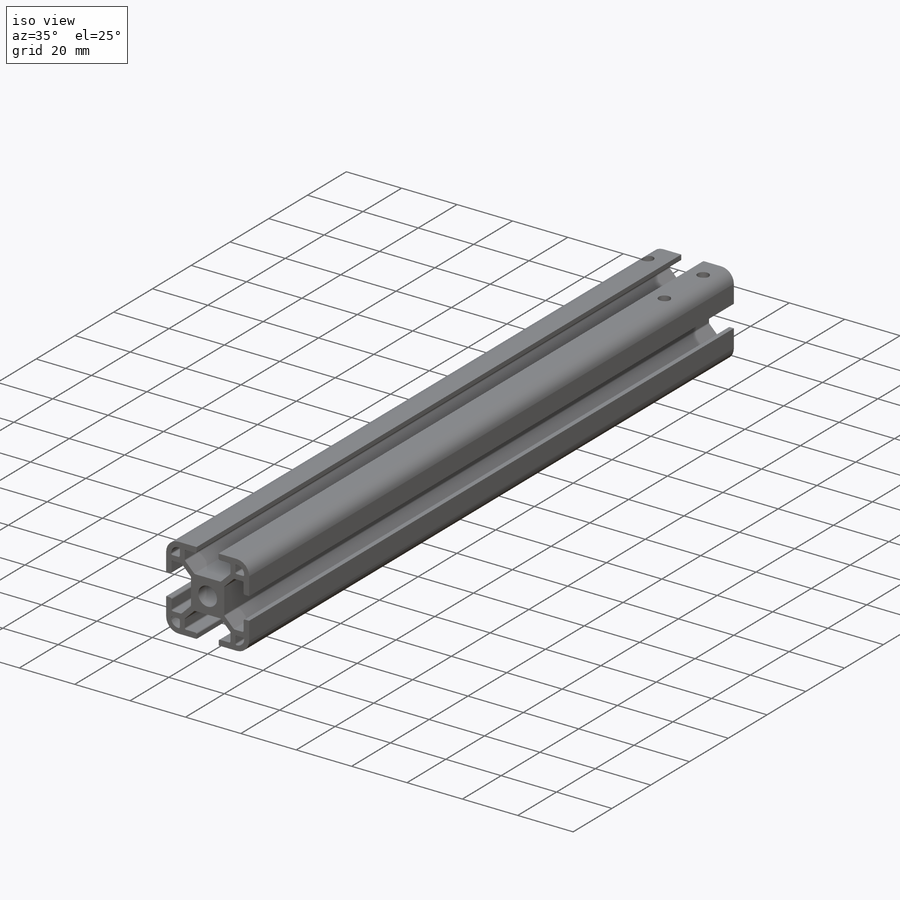
[diagram: iso view]
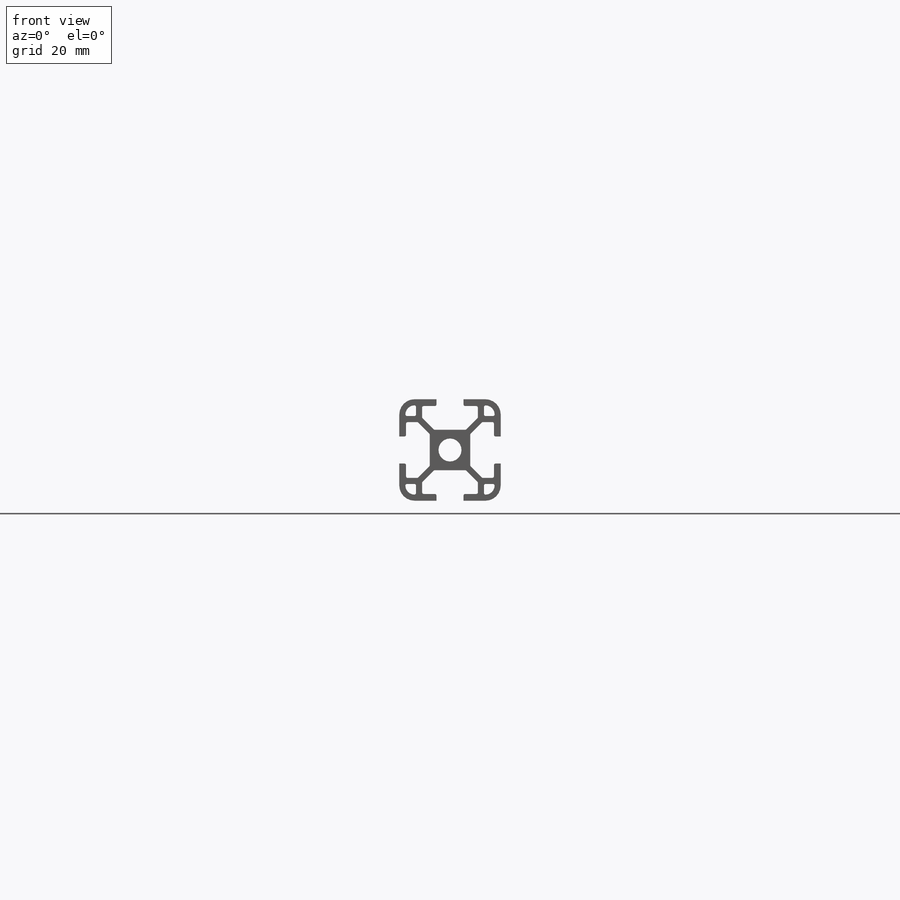
[diagram: front view]
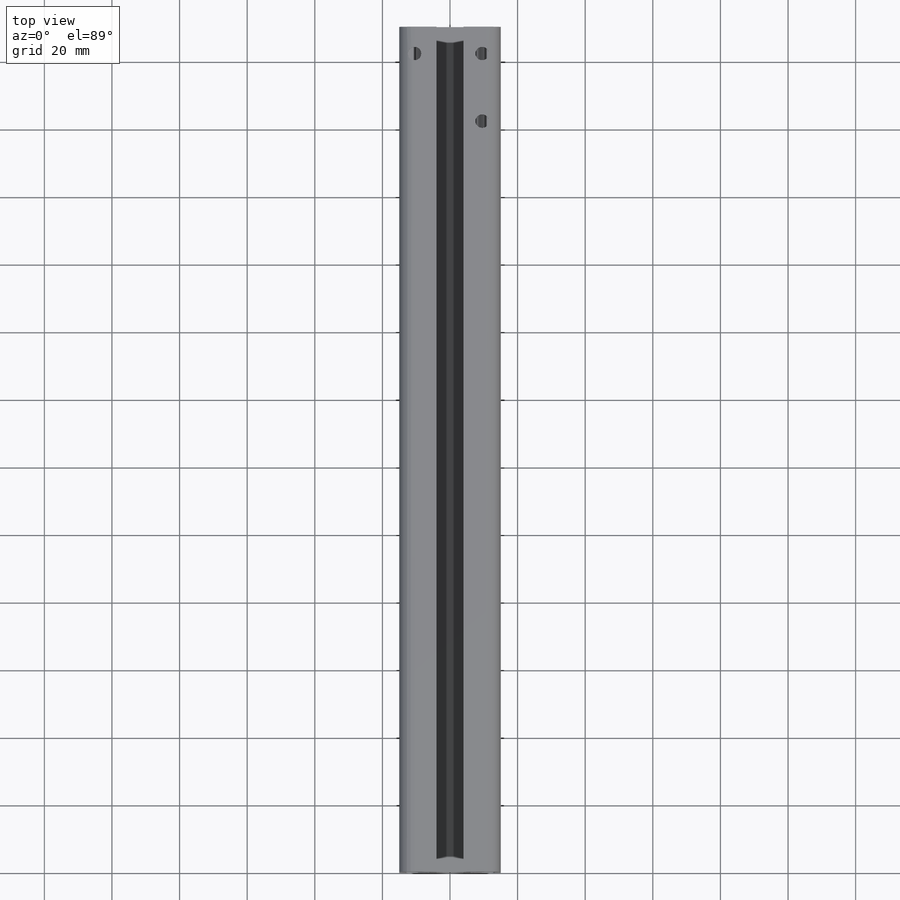
[diagram: top view]
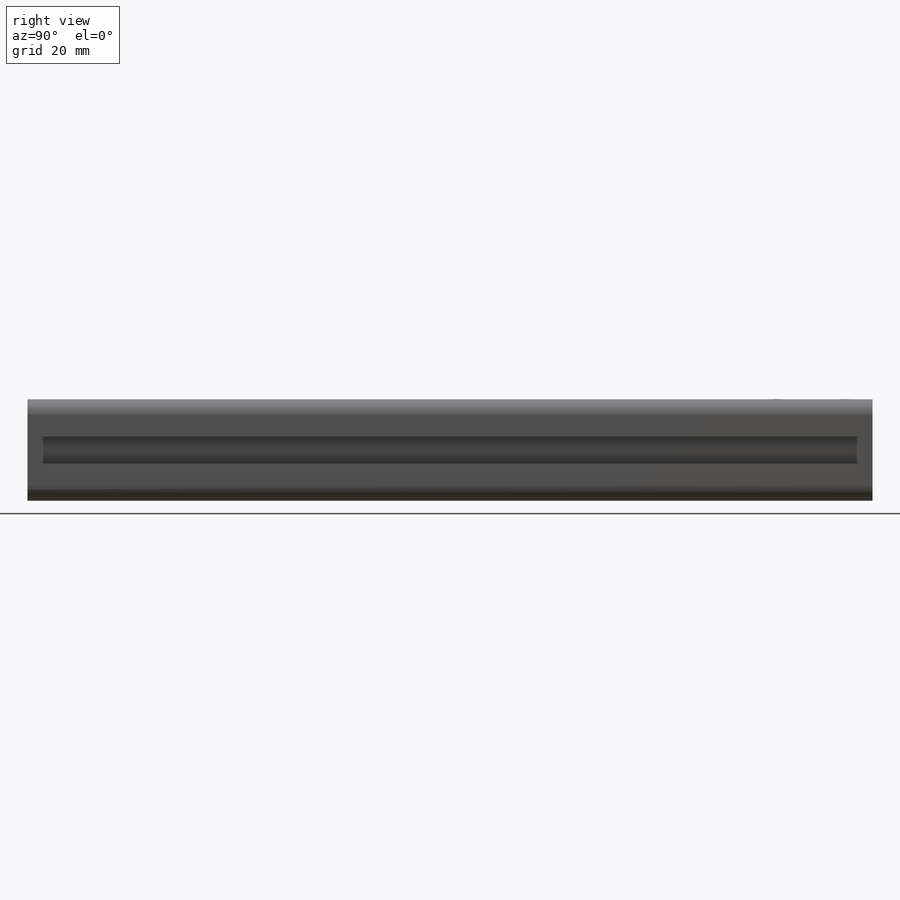
[diagram: right view]
SOLIDWORKS PART (.sldprt)
format: sldprt  version: not decoded by parser v0  size: 2,117,632 bytes
history: native  units: mm
features: sketch x11, plane x3, extrude x3, fillet x3, hole x3, shell x3, cut_extrude x2, material x1, thread x1 + 1 further entry (+11 scaffold rows collapsed)
feature tree (42):
  scaffold x11  (default folders/planes/origin — collapsed)
  material  "材質 <未指定>"
  plane  "前基準面"
  plane  "上基準面"
  plane  "右基準面"
  "設計表格"
  sketch  "草圖1"  dims[c1.D2=4.5mm c1.D3=6.8mm c1.MD1=30.0mm c2.D3=14.0mm c2.D4=12.0mm c3.D3=12.0mm c3.D6=8.2mm c3.D5=1.8mm]
  extrude  "填料-伸長1"  Depth=250mm MD1=250mm
  sketch  "草圖2"  dims[c1.D11=0.5mm c1.D3=6.8mm c1.D2=12.0mm c2.D3=24.1mm c2.D4=24.1mm c2.MD8=8.0mm c2.D9=22.3mm c2.MD3=16.5mm c2.MD4=16.5mm c3.D9=7.0mm c3.D10=10.0mm c3.D11=7.0mm c3.D3=1.8mm c3.D1=1.8mm c3.D5=1.8mm c3.D6=0.9mm c3.D7=0.9mm]
  cut_extrude  "除料-伸長1"  [1 undecoded]
  fillet  "圓角1"  Radius=0.5mm
  sketch  "草圖3"  dims[D6=0.5mm D1=7.8mm D2=15.0mm D3=5.5mm D4=6.3mm D5=10.0mm]
  extrude  "填料-伸長2"  Depth=14mm
  hole  "M4 螺紋孔1"  [1 undecoded]
  sketch  "草圖6"
  sketch  "草圖7"  dims[hole-wizard template sketch: 59 standard entries collapsed; hole parameters kept: c18.貫穿螺孔鑽直徑=3.3mm c18.貫穿螺孔鑽深度=6.3mm]
  thread  "鑽孔螺紋2"  Diameter=4mm  [1 undecoded]
  sketch  "草圖8"  dims[D1=30.0mm D2=30.0mm D3=4.0mm D4=4.0mm]
  extrude  "填料-伸長3"  Depth=20mm
  shell  "薄殼1"  Thickness=4mm
  hole  "M4 螺紋孔2"  [1 undecoded]
  sketch  "草圖11"
  sketch  "草圖12"  dims[hole-wizard template sketch: 59 standard entries collapsed; hole parameters kept: c18.貫穿螺孔鑽直徑=3.3mm c18.貫穿螺孔鑽深度=19.0mm]
  shell  "鑽孔螺紋3"  Thickness=4mm
  hole  "M4 螺紋孔3"  [1 undecoded]
  sketch  "草圖13"
  sketch  "草圖14"  dims[hole-wizard template sketch: 59 standard entries collapsed; hole parameters kept: c18.貫穿螺孔鑽直徑=3.3mm c18.貫穿螺孔鑽深度=4.0mm]
  shell  "鑽孔螺紋3"  Thickness=4mm
  fillet  "圓角2"  Radius=1mm
  fillet  "圓角3"  Radius=1mm
  sketch  "草圖15"  dims[c1.D1=4.0mm c1.D2=4.0mm c1.D6=4.0mm c1.D3=20.0mm c1.D4=8.0mm c1.D5=3.5mm c2.D6=250.0mm c2.D7=20.0mm c2.D5=5.5mm]
  cut_extrude  "除料-伸長2"  [1 undecoded]
decode coverage: 18 of 26 modeling features carry decoded parameters; 1 rows unclassified (native names shown)
note: ~ marks probable driven/reference dimensions
note: 6 parameter values undecoded
summary: no parameter record found for 5 features
note: suppression state not decoded; provenance and decode notes live in map.json
